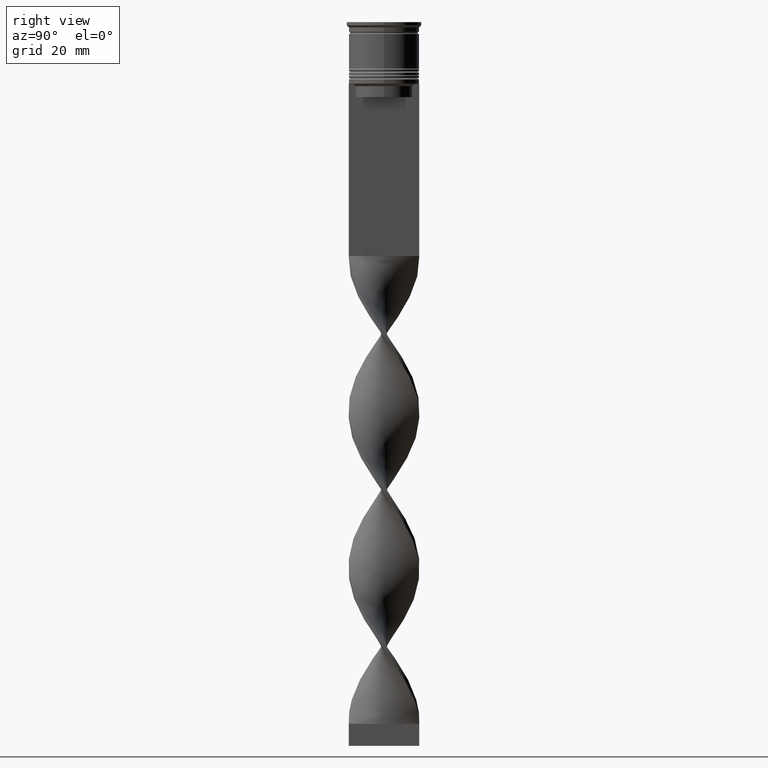
[diagram: clean part render]
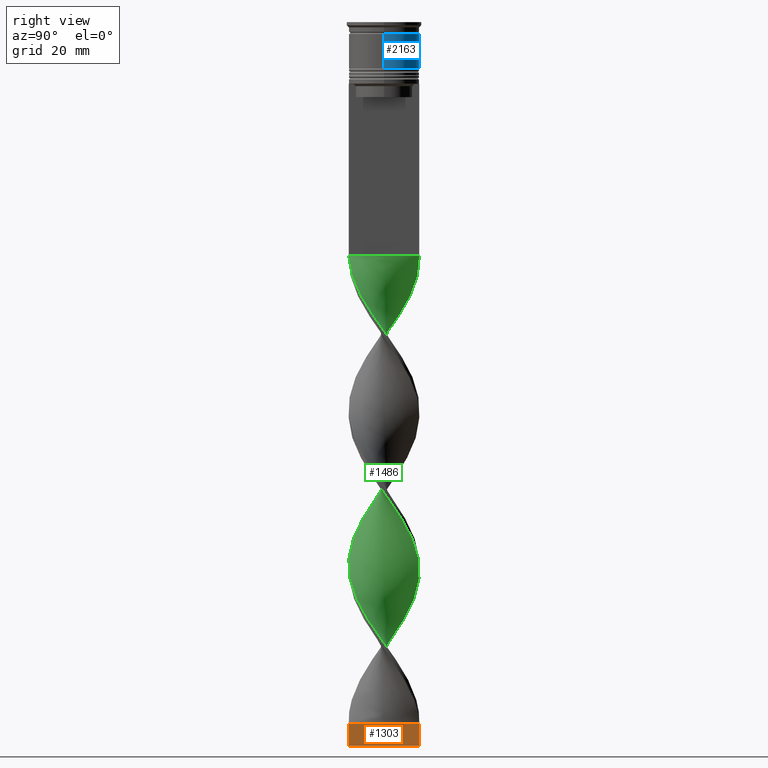
[diagram: same view with three faces highlighted in distinct colors, each labeled with its STEP entity id]
A machine part, right view with three faces highlighted in distinct colors.
Their STEP definitions:

[orange] entity #1303 — the highlighted planar face has unit normal (-1, 0, 0).
#45 = EDGE_CURVE ( 'NONE', #490, #826, #3717, .T. ) ;
#74 = EDGE_LOOP ( 'NONE', ( #1219, #2660, #2033, #2941 ) ) ;
#264 = LINE ( 'NONE', #1386, #3693 ) ;
#357 = VECTOR ( 'NONE', #3415, 1000.000000000000000 ) ;
#490 = VERTEX_POINT ( 'NONE', #2542 ) ;
#709 = DIRECTION ( 'NONE',  ( -1.000000000000000000, 1.219727444046192488E-16, 0.000000000000000000 ) ) ;
#826 = VERTEX_POINT ( 'NONE', #3405 ) ;
#866 = CARTESIAN_POINT ( 'NONE',  ( 0.5000000000000008882, 8.000000000000003553, -164.0000000000000000 ) ) ;
#1056 = CARTESIAN_POINT ( 'NONE',  ( 0.5000000000000008882, 8.000000000000003553, -159.0000000000000000 ) ) ;
#1127 = CARTESIAN_POINT ( 'NONE',  ( 0.5000000000000008882, 8.000000000000003553, -164.0000000000000000 ) ) ;
#1191 = EDGE_CURVE ( 'NONE', #826, #3558, #1397, .T. ) ;
#1219 = ORIENTED_EDGE ( 'NONE', *, *, #1191, .T. ) ;
#1303 = ADVANCED_FACE ( 'NONE', ( #2208 ), #2451, .F. ) ;
#1386 = CARTESIAN_POINT ( 'NONE',  ( 0.4999999999999989453, -7.999999999999996447, -164.0000000000000000 ) ) ;
#1397 = B_SPLINE_CURVE_WITH_KNOTS ( 'NONE', 3,
 ( #1056, #2194, #2765, #2494 ),
 .UNSPECIFIED., .F., .F.,
 ( 4, 4 ),
 ( 0.000000000000000000, 1.000000000000000000 ),
 .UNSPECIFIED. ) ;
#1435 = EDGE_CURVE ( 'NONE', #3306, #3558, #264, .T. ) ;
#1643 = VECTOR ( 'NONE', #1684, 1000.000000000000000 ) ;
#1684 = DIRECTION ( 'NONE',  ( -1.219727444046192488E-16, -1.000000000000000000, 0.000000000000000000 ) ) ;
#1898 = DIRECTION ( 'NONE',  ( -1.219727444046192488E-16, -1.000000000000000000, 0.000000000000000000 ) ) ;
#2033 = ORIENTED_EDGE ( 'NONE', *, *, #2903, .F. ) ;
#2191 = CARTESIAN_POINT ( 'NONE',  ( 0.4999999999999989453, -7.999999999999996447, -164.0000000000000000 ) ) ;
#2194 = CARTESIAN_POINT ( 'NONE',  ( 0.5000000000000002220, 2.666666666666670515, -159.0000000000000000 ) ) ;
#2208 = FACE_OUTER_BOUND ( 'NONE', #74, .T. ) ;
#2451 = PLANE ( 'NONE',  #3633 ) ;
#2494 = CARTESIAN_POINT ( 'NONE',  ( 0.4999999999999989453, -7.999999999999996447, -159.0000000000000000 ) ) ;
#2542 = CARTESIAN_POINT ( 'NONE',  ( 0.5000000000000008882, 8.000000000000003553, -164.0000000000000000 ) ) ;
#2660 = ORIENTED_EDGE ( 'NONE', *, *, #1435, .F. ) ;
#2765 = CARTESIAN_POINT ( 'NONE',  ( 0.4999999999999995559, -2.666666666666663410, -159.0000000000000000 ) ) ;
#2888 = CARTESIAN_POINT ( 'NONE',  ( 0.4999999999999989453, -7.999999999999996447, -159.0000000000000000 ) ) ;
#2903 = EDGE_CURVE ( 'NONE', #490, #3306, #3194, .T. ) ;
#2941 = ORIENTED_EDGE ( 'NONE', *, *, #45, .T. ) ;
#3194 = LINE ( 'NONE', #866, #1643 ) ;
#3306 = VERTEX_POINT ( 'NONE', #2191 ) ;
#3405 = CARTESIAN_POINT ( 'NONE',  ( 0.5000000000000008882, 8.000000000000003553, -159.0000000000000000 ) ) ;
#3415 = DIRECTION ( 'NONE',  ( -0.000000000000000000, -0.000000000000000000, 1.000000000000000000 ) ) ;
#3558 = VERTEX_POINT ( 'NONE', #2888 ) ;
#3633 = AXIS2_PLACEMENT_3D ( 'NONE', #3673, #709, #1898 ) ;
#3673 = CARTESIAN_POINT ( 'NONE',  ( 0.5000000000000008882, 8.000000000000003553, -164.0000000000000000 ) ) ;
#3690 = DIRECTION ( 'NONE',  ( -0.000000000000000000, -0.000000000000000000, 1.000000000000000000 ) ) ;
#3693 = VECTOR ( 'NONE', #3690, 1000.000000000000000 ) ;
#3717 = LINE ( 'NONE', #1127, #357 ) ;

[blue] entity #2163 — the highlighted cylindrical surface (edge-blend (fillet) strip) has radius 8 mm, axis along (-0, -0, 1).
#10 = EDGE_CURVE ( 'NONE', #52, #3606, #1213, .T. ) ;
#17 = DIRECTION ( 'NONE',  ( -0.000000000000000000, -0.000000000000000000, 1.000000000000000000 ) ) ;
#52 = VERTEX_POINT ( 'NONE', #829 ) ;
#60 = CIRCLE ( 'NONE', #2781, 8.000000000000001776 ) ;
#199 = DIRECTION ( 'NONE',  ( 1.000000000000000000, 0.000000000000000000, 0.000000000000000000 ) ) ;
#496 = ORIENTED_EDGE ( 'NONE', *, *, #2614, .T. ) ;
#509 = ORIENTED_EDGE ( 'NONE', *, *, #772, .T. ) ;
#686 = ORIENTED_EDGE ( 'NONE', *, *, #10, .F. ) ;
#711 = LINE ( 'NONE', #2096, #3274 ) ;
#772 = EDGE_CURVE ( 'NONE', #2432, #1036, #60, .T. ) ;
#829 = CARTESIAN_POINT ( 'NONE',  ( 7.999999999999998224, 0.000000000000000000, -2.700000000000001510 ) ) ;
#926 = EDGE_CURVE ( 'NONE', #2432, #52, #1152, .T. ) ;
#1036 = VERTEX_POINT ( 'NONE', #2330 ) ;
#1065 = DIRECTION ( 'NONE',  ( -0.000000000000000000, -0.000000000000000000, 1.000000000000000000 ) ) ;
#1152 = LINE ( 'NONE', #3170, #2174 ) ;
#1213 = CIRCLE ( 'NONE', #2345, 7.999999999999998224 ) ;
#1227 = AXIS2_PLACEMENT_3D ( 'NONE', #3595, #17, #2036 ) ;
#1587 = CYLINDRICAL_SURFACE ( 'NONE', #1227, 8.000000000000000000 ) ;
#1977 = DIRECTION ( 'NONE',  ( 1.000000000000000000, 0.000000000000000000, 0.000000000000000000 ) ) ;
#2036 = DIRECTION ( 'NONE',  ( 1.000000000000000000, 0.000000000000000000, 0.000000000000000000 ) ) ;
#2096 = CARTESIAN_POINT ( 'NONE',  ( -8.000000000000000000, 9.797174393178825657E-16, 0.000000000000000000 ) ) ;
#2138 = DIRECTION ( 'NONE',  ( -0.000000000000000000, -0.000000000000000000, 1.000000000000000000 ) ) ;
#2163 = ADVANCED_FACE ( 'NONE', ( #2606 ), #1587, .T. ) ;
#2174 = VECTOR ( 'NONE', #2597, 1000.000000000000000 ) ;
#2330 = CARTESIAN_POINT ( 'NONE',  ( -8.000000000000001776, 9.797174393178827630E-16, -10.50000000000000000 ) ) ;
#2345 = AXIS2_PLACEMENT_3D ( 'NONE', #2823, #3696, #199 ) ;
#2432 = VERTEX_POINT ( 'NONE', #3359 ) ;
#2597 = DIRECTION ( 'NONE',  ( -0.000000000000000000, -0.000000000000000000, 1.000000000000000000 ) ) ;
#2606 = FACE_OUTER_BOUND ( 'NONE', #2741, .T. ) ;
#2614 = EDGE_CURVE ( 'NONE', #1036, #3606, #711, .T. ) ;
#2674 = CARTESIAN_POINT ( 'NONE',  ( -7.999999999999998224, 9.797174393178823685E-16, -2.700000000000001510 ) ) ;
#2741 = EDGE_LOOP ( 'NONE', ( #509, #496, #686, #3300 ) ) ;
#2781 = AXIS2_PLACEMENT_3D ( 'NONE', #2798, #1065, #1977 ) ;
#2798 = CARTESIAN_POINT ( 'NONE',  ( 0.000000000000000000, 0.000000000000000000, -10.50000000000000000 ) ) ;
#2823 = CARTESIAN_POINT ( 'NONE',  ( 0.000000000000000000, 0.000000000000000000, -2.700000000000001510 ) ) ;
#3170 = CARTESIAN_POINT ( 'NONE',  ( 8.000000000000000000, 0.000000000000000000, 0.000000000000000000 ) ) ;
#3274 = VECTOR ( 'NONE', #2138, 1000.000000000000000 ) ;
#3300 = ORIENTED_EDGE ( 'NONE', *, *, #926, .F. ) ;
#3359 = CARTESIAN_POINT ( 'NONE',  ( 8.000000000000001776, 0.000000000000000000, -10.50000000000000000 ) ) ;
#3595 = CARTESIAN_POINT ( 'NONE',  ( 0.000000000000000000, 0.000000000000000000, 0.000000000000000000 ) ) ;
#3606 = VERTEX_POINT ( 'NONE', #2674 ) ;
#3696 = DIRECTION ( 'NONE',  ( -0.000000000000000000, -0.000000000000000000, 1.000000000000000000 ) ) ;

[green] entity #1486 — the highlighted face is a freeform B-spline surface patch.
#4 = CARTESIAN_POINT ( 'NONE',  ( -3.586635261345274994, -7.217742780431604110, -117.7777777777777857 ) ) ;
#23 = CARTESIAN_POINT ( 'NONE',  ( 1.340833882125412213, -7.947447882367163707, -124.8444444444444343 ) ) ;
#32 = CARTESIAN_POINT ( 'NONE',  ( -2.007605570224930691, 7.805721184925808132, -127.2000000000000171 ) ) ;
#34 = CARTESIAN_POINT ( 'NONE',  ( -3.710665873427702710, -7.104995339602902860, -154.2888888888888914 ) ) ;
#50 = CARTESIAN_POINT ( 'NONE',  ( -7.903910931312356780, 1.333488653825365855, -69.48888888888889426 ) ) ;
#51 = CARTESIAN_POINT ( 'NONE',  ( 1.174219726175168788, -7.929136651279321768, -90.68888888888888289 ) ) ;
#58 = CARTESIAN_POINT ( 'NONE',  ( 4.297773521152314480, 6.766028581145818066, -151.9333333333333371 ) ) ;
#71 = CARTESIAN_POINT ( 'NONE',  ( -5.008911780959349080, 6.314314381860025804, -61.24444444444443292 ) ) ;
#73 = CARTESIAN_POINT ( 'NONE',  ( 6.279723906998583516, 4.981472438132163560, -114.2444444444444542 ) ) ;
#83 = CARTESIAN_POINT ( 'NONE',  ( -0.4999999999999991673, 8.000000000000003553, -159.0000000000000000 ) ) ;
#90 = CARTESIAN_POINT ( 'NONE',  ( 2.152367326908981138, 7.721224960461560372, -121.3111111111111171 ) ) ;
#96 = CARTESIAN_POINT ( 'NONE',  ( 6.279723906998584404, -4.981472438132170666, -133.0888888888889028 ) ) ;
#97 = VERTEX_POINT ( 'NONE', #3219 ) ;
#108 = CARTESIAN_POINT ( 'NONE',  ( -3.710665873427702710, -7.104995339602902860, -154.2888888888888914 ) ) ;
#126 = CARTESIAN_POINT ( 'NONE',  ( -4.297773521152309151, 6.766028581145814513, -60.06666666666666288 ) ) ;
#129 = CARTESIAN_POINT ( 'NONE',  ( -7.903910931312363886, -1.333488653825361192, -107.1777777777777771 ) ) ;
#130 = B_SPLINE_CURVE_WITH_KNOTS ( 'NONE', 3,
 ( #2961, #1528, #2670, #83 ),
 .UNSPECIFIED., .F., .F.,
 ( 4, 4 ),
 ( 0.000000000000000000, 1.000000000000000000 ),
 .UNSPECIFIED. ) ;
#148 = CARTESIAN_POINT ( 'NONE',  ( 6.678203230275505220, -4.433012701892221408, -100.1111111111111143 ) ) ;
#151 = CARTESIAN_POINT ( 'NONE',  ( 3.586635261345274106, 7.217742780431604999, -82.44444444444444287 ) ) ;
#170 = CARTESIAN_POINT ( 'NONE',  ( -1.340833882125413545, -7.947447882367156602, -157.8222222222221660 ) ) ;
#180 = CARTESIAN_POINT ( 'NONE',  ( 1.340833882125412213, -7.947447882367163707, -54.17777777777777715 ) ) ;
#190 = CARTESIAN_POINT ( 'NONE',  ( 7.763755626116592090, 2.164223167868970066, -73.02222222222219727 ) ) ;
#208 = CARTESIAN_POINT ( 'NONE',  ( 5.756150055891659179, -5.641498017056845171, -131.9111111111111256 ) ) ;
#223 = CARTESIAN_POINT ( 'NONE',  ( 2.797120415785104619, 7.511731982678710118, -154.2888888888888914 ) ) ;
#238 = VECTOR ( 'NONE', #3014, 1000.000000000000000 ) ;
#254 = CARTESIAN_POINT ( 'NONE',  ( -8.008439394580017634, 0.3389667584570975056, -104.8222222222222229 ) ) ;
#260 = CARTESIAN_POINT ( 'NONE',  ( 3.710665873427703154, -7.104995339602909965, -128.3777777777777942 ) ) ;
#266 = CARTESIAN_POINT ( 'NONE',  ( -6.678203230275506108, 4.433012701892218743, -135.4444444444444571 ) ) ;
#272 = CARTESIAN_POINT ( 'NONE',  ( 4.457430975162862907, -6.714988640649847795, -129.5555555555555429 ) ) ;
#281 = EDGE_CURVE ( 'NONE', #2786, #1412, #2745, .T. ) ;
#284 = CARTESIAN_POINT ( 'NONE',  ( -2.007605570224930691, 7.805721184925808132, -127.2000000000000028 ) ) ;
#287 = CARTESIAN_POINT ( 'NONE',  ( -7.144131640230925839, -3.731105258425339688, -110.7111111111111086 ) ) ;
#299 = CARTESIAN_POINT ( 'NONE',  ( -7.453943633173751415, 2.947664213147155543, -67.13333333333333997 ) ) ;
#301 = CARTESIAN_POINT ( 'NONE',  ( 0.5000000000000001110, 7.999999999999996447, -123.6666666666666714 ) ) ;
#308 = CARTESIAN_POINT ( 'NONE',  ( -7.972812552651897811, 1.180687656695944776, -103.6444444444444457 ) ) ;
#320 = CARTESIAN_POINT ( 'NONE',  ( -0.3408338821254111584, 8.052552117632835404, -124.8444444444444343 ) ) ;
#322 = CARTESIAN_POINT ( 'NONE',  ( 7.762960627548699755, 1.996607696851999680, -109.5333333333333456 ) ) ;
#327 = CARTESIAN_POINT ( 'NONE',  ( -0.4999999999999991673, 8.000000000000003553, -88.33333333333332860 ) ) ;
#337 = CARTESIAN_POINT ( 'NONE',  ( 1.340833882125418208, 7.947447882367156602, -122.4888888888888800 ) ) ;
#351 = CARTESIAN_POINT ( 'NONE',  ( -1.174219726175170786, 7.929136651279321768, -55.35555555555555429 ) ) ;
#353 = CARTESIAN_POINT ( 'NONE',  ( 6.678203230275505220, -4.433012701892221408, -100.1111111111111143 ) ) ;
#360 = CARTESIAN_POINT ( 'NONE',  ( 7.903910931312363886, 1.333488653825363857, -142.5111111111111200 ) ) ;
#372 = CARTESIAN_POINT ( 'NONE',  ( -1.340833882125413545, -7.947447882367156602, -87.15555555555553724 ) ) ;
#374 = CARTESIAN_POINT ( 'NONE',  ( 7.144131640230915181, -3.731105258425345461, -101.2888888888888914 ) ) ;
#380 = CARTESIAN_POINT ( 'NONE',  ( 7.553108702445512357, -2.812527737008067241, -136.6222222222222342 ) ) ;
#393 = CARTESIAN_POINT ( 'NONE',  ( 6.803297758105507853, 4.321446859207492608, -113.0666666666666487 ) ) ;
#400 = CARTESIAN_POINT ( 'NONE',  ( 3.586635261345274106, 7.217742780431604999, -153.1111111111111143 ) ) ;
#411 = CARTESIAN_POINT ( 'NONE',  ( -7.972812552651896922, 1.180687656695944776, -103.6444444444444457 ) ) ;
#418 = CARTESIAN_POINT ( 'NONE',  ( 8.008439394580017634, -0.3389667584570930092, -140.1555555555555657 ) ) ;
#429 = CARTESIAN_POINT ( 'NONE',  ( -7.763755626116584985, 2.164223167868970954, -68.31111111111111711 ) ) ;
#433 = CARTESIAN_POINT ( 'NONE',  ( -0.5000000000000011102, -7.999999999999996447, -159.0000000000000000 ) ) ;
#451 = CARTESIAN_POINT ( 'NONE',  ( 6.212274820320095259, -5.134920145359096466, -98.93333333333332291 ) ) ;
#453 = CARTESIAN_POINT ( 'NONE',  ( 7.553108702445513245, -2.812527737008067685, -65.95555555555556282 ) ) ;
#471 = CARTESIAN_POINT ( 'NONE',  ( 4.297773521152314480, 6.766028581145818066, -81.26666666666666572 ) ) ;
#489 = CARTESIAN_POINT ( 'NONE',  ( 5.008911780959355298, 6.314314381860029357, -80.08888888888890278 ) ) ;
#508 = CARTESIAN_POINT ( 'NONE',  ( 7.553108702445513245, -2.812527737008067685, -136.6222222222222342 ) ) ;
#512 = CARTESIAN_POINT ( 'NONE',  ( 0.5000000000000001110, 7.999999999999996447, -53.00000000000000000 ) ) ;
#537 = CARTESIAN_POINT ( 'NONE',  ( -4.457430975162861131, 6.714988640649849572, -94.22222222222221433 ) ) ;
#551 = CARTESIAN_POINT ( 'NONE',  ( -7.453943633173751415, 2.947664213147155543, -137.8000000000000114 ) ) ;
#558 = CARTESIAN_POINT ( 'NONE',  ( -7.903910931312363886, -1.333488653825361192, -107.1777777777777771 ) ) ;
#566 = CARTESIAN_POINT ( 'NONE',  ( 6.212274820320101476, 5.134920145359098242, -148.4000000000000057 ) ) ;
#578 = CARTESIAN_POINT ( 'NONE',  ( 2.963900771692544289, -7.495002038555971247, -56.53333333333332433 ) ) ;
#579 = EDGE_CURVE ( 'NONE', #1412, #97, #2761, .T. ) ;
#583 = CARTESIAN_POINT ( 'NONE',  ( 7.762960627548705084, -1.996607696852003677, -137.8000000000000114 ) ) ;
#589 = CARTESIAN_POINT ( 'NONE',  ( -3.586635261345268333, 7.217742780431601446, -129.5555555555555429 ) ) ;
#594 = CARTESIAN_POINT ( 'NONE',  ( -7.178203230275511437, 3.566987298107786142, -100.1111111111111143 ) ) ;
#606 = CARTESIAN_POINT ( 'NONE',  ( 2.963900771692544289, 7.495002038555964141, -120.1333333333333400 ) ) ;
#608 = CARTESIAN_POINT ( 'NONE',  ( 1.340833882125418208, 7.947447882367156602, -122.4888888888888800 ) ) ;
#616 = CARTESIAN_POINT ( 'NONE',  ( 5.756150055891658290, -5.641498017056844283, -61.24444444444443292 ) ) ;
#628 = CARTESIAN_POINT ( 'NONE',  ( 4.457430975162862907, 6.714988640649839802, -117.7777777777777999 ) ) ;
#631 = CARTESIAN_POINT ( 'NONE',  ( -6.212274820320096147, 5.134920145359095578, -134.2666666666666515 ) ) ;
#636 = CARTESIAN_POINT ( 'NONE',  ( 7.972812552651897811, -1.180687656695942112, -138.9777777777777885 ) ) ;
#647 = CARTESIAN_POINT ( 'NONE',  ( -7.972812552651889817, -1.180687656695938337, -73.02222222222219727 ) ) ;
#659 = CARTESIAN_POINT ( 'NONE',  ( -5.756150055891655626, -5.641498017056837178, -80.08888888888888857 ) ) ;
#661 = CARTESIAN_POINT ( 'NONE',  ( -8.008439394580010529, -0.3389667584570894565, -142.5111111111111200 ) ) ;
#682 = CARTESIAN_POINT ( 'NONE',  ( -7.453943633173751415, 2.947664213147155543, -67.13333333333333997 ) ) ;
#685 = CARTESIAN_POINT ( 'NONE',  ( -8.044066236508127687, 0.5027541397817588686, -70.66666666666667140 ) ) ;
#705 = CARTESIAN_POINT ( 'NONE',  ( 7.178203230275512325, -3.566987298107783477, -64.77777777777778567 ) ) ;
#719 = CARTESIAN_POINT ( 'NONE',  ( -3.710665873427702710, -7.104995339602902860, -83.62222222222222001 ) ) ;
#722 = CARTESIAN_POINT ( 'NONE',  ( 5.610593300639729719, 5.724617263609562912, -78.91111111111111143 ) ) ;
#742 = CARTESIAN_POINT ( 'NONE',  ( 3.586635261345266557, -7.217742780431602334, -94.22222222222221433 ) ) ;
#746 = CARTESIAN_POINT ( 'NONE',  ( -2.963900771692543401, -7.495002038555964141, -155.4666666666666686 ) ) ;
#764 = CARTESIAN_POINT ( 'NONE',  ( 2.963900771692544289, -7.495002038555971247, -56.53333333333331723 ) ) ;
#780 = CARTESIAN_POINT ( 'NONE',  ( -7.762960627548705084, 1.996607696852004565, -102.4666666666666686 ) ) ;
#799 = CARTESIAN_POINT ( 'NONE',  ( -5.008911780959359739, -6.314314381860026693, -115.4222222222222456 ) ) ;
#808 = CARTESIAN_POINT ( 'NONE',  ( 0.5000000000000001110, -8.000000000000003553, -53.00000000000000000 ) ) ;
#821 = CARTESIAN_POINT ( 'NONE',  ( 1.340833882125412213, -7.947447882367162819, -124.8444444444444343 ) ) ;
#833 = CARTESIAN_POINT ( 'NONE',  ( 7.144131640230924951, 3.731105258425341464, -75.37777777777777999 ) ) ;
#838 = CARTESIAN_POINT ( 'NONE',  ( 7.763755626116592090, 2.164223167868970066, -143.6888888888888971 ) ) ;
#843 = CARTESIAN_POINT ( 'NONE',  ( -7.903910931312356780, 1.333488653825365855, -69.48888888888889426 ) ) ;
#845 = CARTESIAN_POINT ( 'NONE',  ( -8.044066236508127687, 0.5027541397817588686, -141.3333333333333428 ) ) ;
#849 = CARTESIAN_POINT ( 'NONE',  ( -6.803297758105512294, 4.321446859207499713, -98.93333333333332291 ) ) ;
#862 = CARTESIAN_POINT ( 'NONE',  ( -5.610593300639721726, 5.724617263609561135, -62.42222222222221717 ) ) ;
#873 = CARTESIAN_POINT ( 'NONE',  ( -2.963900771692543845, 7.495002038555972135, -91.86666666666666003 ) ) ;
#882 = CARTESIAN_POINT ( 'NONE',  ( -6.212274820320096147, 5.134920145359095578, -63.60000000000000853 ) ) ;
#889 = CARTESIAN_POINT ( 'NONE',  ( 7.453943633173759409, 2.947664213147156431, -74.20000000000000284 ) ) ;
#897 = CARTESIAN_POINT ( 'NONE',  ( 4.297773521152308263, -6.766028581145814513, -95.40000000000000568 ) ) ;
#899 = CARTESIAN_POINT ( 'NONE',  ( 7.763755626116584985, -2.164223167868973619, -103.6444444444444457 ) ) ;
#905 = CARTESIAN_POINT ( 'NONE',  ( -0.3408338821254187634, -8.052552117632842510, -122.4888888888888800 ) ) ;
#915 = CARTESIAN_POINT ( 'NONE',  ( -7.144131640230917846, 3.731105258425341020, -136.6222222222222342 ) ) ;
#917 = CARTESIAN_POINT ( 'NONE',  ( -6.803297758105507853, -4.321446859207493496, -148.4000000000000057 ) ) ;
#924 = CARTESIAN_POINT ( 'NONE',  ( 7.178203230275512325, -3.566987298107783477, -135.4444444444444571 ) ) ;
#937 = CARTESIAN_POINT ( 'NONE',  ( -0.5000000000000011102, -7.999999999999996447, -88.33333333333332860 ) ) ;
#938 = CARTESIAN_POINT ( 'NONE',  ( 7.903910931312356780, -1.333488653825370518, -104.8222222222222229 ) ) ;
#952 = CARTESIAN_POINT ( 'NONE',  ( 7.762960627548699755, 1.996607696851999680, -109.5333333333333456 ) ) ;
#971 = CARTESIAN_POINT ( 'NONE',  ( 5.008911780959347304, -6.314314381860026693, -96.57777777777775441 ) ) ;
#978 = CARTESIAN_POINT ( 'NONE',  ( 5.106790515527261043, -6.178243328853345595, -130.7333333333333485 ) ) ;
#994 = CARTESIAN_POINT ( 'NONE',  ( 6.212274820320101476, 5.134920145359098242, -77.73333333333333428 ) ) ;
#1011 = CARTESIAN_POINT ( 'NONE',  ( -2.152367326908979805, -7.721224960461560372, -156.6444444444444457 ) ) ;
#1027 = CARTESIAN_POINT ( 'NONE',  ( 0.3408338821254078277, -8.052552117632837181, -89.51111111111110574 ) ) ;
#1030 = CARTESIAN_POINT ( 'NONE',  ( 1.174219726175175671, 7.929136651279327097, -85.97777777777777430 ) ) ;
#1049 = CARTESIAN_POINT ( 'NONE',  ( 2.797120415785104619, 7.511731982678710118, -83.62222222222222001 ) ) ;
#1052 = ORIENTED_EDGE ( 'NONE', *, *, #2520, .T. ) ;
#1066 = CARTESIAN_POINT ( 'NONE',  ( -7.553108702445510581, 2.812527737008071682, -101.2888888888888914 ) ) ;
#1082 = CARTESIAN_POINT ( 'NONE',  ( 7.903910931312363886, 1.333488653825363857, -142.5111111111111200 ) ) ;
#1114 = CARTESIAN_POINT ( 'NONE',  ( -7.762960627548705084, 1.996607696852004565, -102.4666666666666686 ) ) ;
#1123 = CARTESIAN_POINT ( 'NONE',  ( -3.586635261345267889, 7.217742780431601446, -58.88888888888889284 ) ) ;
#1125 = CARTESIAN_POINT ( 'NONE',  ( 8.008439394580010529, 0.3389667584570867365, -107.1777777777777771 ) ) ;
#1130 = CARTESIAN_POINT ( 'NONE',  ( 2.152367326908978473, -7.721224960461570141, -126.0222222222222257 ) ) ;
#1135 = CARTESIAN_POINT ( 'NONE',  ( -3.586635261345274994, -7.217742780431604110, -117.7777777777777999 ) ) ;
#1143 = CARTESIAN_POINT ( 'NONE',  ( -7.762960627548699755, -1.996607696852000569, -144.8666666666666742 ) ) ;
#1147 = CARTESIAN_POINT ( 'NONE',  ( 5.008911780959356186, 6.314314381860030245, -80.08888888888888857 ) ) ;
#1163 = CARTESIAN_POINT ( 'NONE',  ( -4.457430975162862019, -6.714988640649840690, -153.1111111111111143 ) ) ;
#1170 = CARTESIAN_POINT ( 'NONE',  ( 2.152367326908978473, -7.721224960461570141, -55.35555555555555429 ) ) ;
#1181 = CARTESIAN_POINT ( 'NONE',  ( -3.710665873427702710, -7.104995339602902860, -83.62222222222222001 ) ) ;
#1183 = CARTESIAN_POINT ( 'NONE',  ( -5.008911780959349080, 6.314314381860025804, -131.9111111111111256 ) ) ;
#1189 = CARTESIAN_POINT ( 'NONE',  ( 5.106790515527261043, -6.178243328853345595, -60.06666666666666288 ) ) ;
#1198 = CARTESIAN_POINT ( 'NONE',  ( -5.610593300639721726, 5.724617263609561135, -133.0888888888889028 ) ) ;
#1201 = CARTESIAN_POINT ( 'NONE',  ( -2.152367326908979805, -7.721224960461560372, -156.6444444444444457 ) ) ;
#1206 = CARTESIAN_POINT ( 'NONE',  ( 7.453943633173759409, 2.947664213147156431, -144.8666666666666742 ) ) ;
#1216 = CARTESIAN_POINT ( 'NONE',  ( -7.762960627548699755, -1.996607696852000569, -74.20000000000000284 ) ) ;
#1218 = CARTESIAN_POINT ( 'NONE',  ( 2.797120415785096625, -7.511731982678705677, -93.04444444444443718 ) ) ;
#1225 = CARTESIAN_POINT ( 'NONE',  ( 5.008911780959356186, 6.314314381860030245, -150.7555555555555600 ) ) ;
#1236 = CARTESIAN_POINT ( 'NONE',  ( -8.044066236508127687, 0.5027541397817588686, -70.66666666666667140 ) ) ;
#1237 = CARTESIAN_POINT ( 'NONE',  ( 5.106790515527259267, 6.178243328853339378, -116.6000000000000085 ) ) ;
#1252 = CARTESIAN_POINT ( 'NONE',  ( 7.453943633173751415, -2.947664213147155987, -102.4666666666666686 ) ) ;
#1258 = CARTESIAN_POINT ( 'NONE',  ( 8.044066236508134793, 0.5027541397817577584, -141.3333333333333428 ) ) ;
#1271 = CARTESIAN_POINT ( 'NONE',  ( -8.008439394580017634, 0.3389667584570975056, -104.8222222222222229 ) ) ;
#1291 = CARTESIAN_POINT ( 'NONE',  ( -6.678203230275506108, 4.433012701892218743, -64.77777777777778567 ) ) ;
#1294 = CARTESIAN_POINT ( 'NONE',  ( -7.763755626116593866, -2.164223167868965625, -108.3555555555555543 ) ) ;
#1309 = CARTESIAN_POINT ( 'NONE',  ( 7.144131640230915181, -3.731105258425345461, -101.2888888888888914 ) ) ;
#1312 = CARTESIAN_POINT ( 'NONE',  ( 7.903910931312363886, 1.333488653825363857, -71.84444444444444855 ) ) ;
#1329 = CARTESIAN_POINT ( 'NONE',  ( 7.972812552651896922, -1.180687656695942334, -68.31111111111111711 ) ) ;
#1351 = CARTESIAN_POINT ( 'NONE',  ( 7.762960627548705084, -1.996607696852003677, -67.13333333333333997 ) ) ;
#1367 = CARTESIAN_POINT ( 'NONE',  ( -1.174219726175176559, -7.929136651279327097, -121.3111111111111171 ) ) ;
#1382 = CARTESIAN_POINT ( 'NONE',  ( 0.3408338821254142115, 8.052552117632842510, -157.8222222222221660 ) ) ;
#1408 = CARTESIAN_POINT ( 'NONE',  ( -0.3408338821254111584, 8.052552117632835404, -54.17777777777777715 ) ) ;
#1412 = VERTEX_POINT ( 'NONE', #512 ) ;
#1416 = CARTESIAN_POINT ( 'NONE',  ( 5.610593300639729719, 5.724617263609562912, -78.91111111111111143 ) ) ;
#1421 = CARTESIAN_POINT ( 'NONE',  ( 5.106790515527261043, -6.178243328853345595, -130.7333333333333485 ) ) ;
#1427 = CARTESIAN_POINT ( 'NONE',  ( 4.457430975162862907, 6.714988640649839802, -117.7777777777777857 ) ) ;
#1432 = CARTESIAN_POINT ( 'NONE',  ( 8.008439394580017634, -0.3389667584570930092, -69.48888888888889426 ) ) ;
#1437 = CARTESIAN_POINT ( 'NONE',  ( 6.279723906998584404, -4.981472438132170666, -133.0888888888889028 ) ) ;
#1443 = CARTESIAN_POINT ( 'NONE',  ( 7.972812552651892481, 1.180687656695933230, -108.3555555555555543 ) ) ;
#1449 = CARTESIAN_POINT ( 'NONE',  ( -5.008911780959359739, -6.314314381860026693, -115.4222222222222314 ) ) ;
#1466 = CARTESIAN_POINT ( 'NONE',  ( -7.144131640230917846, 3.731105258425341020, -136.6222222222222342 ) ) ;
#1473 = CARTESIAN_POINT ( 'NONE',  ( 7.972812552651897811, -1.180687656695942112, -68.31111111111111711 ) ) ;
#1482 = CARTESIAN_POINT ( 'NONE',  ( -4.297773521152309151, 6.766028581145814513, -130.7333333333333485 ) ) ;
#1484 = CARTESIAN_POINT ( 'NONE',  ( 5.106790515527259267, 6.178243328853339378, -116.6000000000000085 ) ) ;
#1486 = ADVANCED_FACE ( 'NONE', ( #1968 ), #2648, .T. ) ;
#1489 = CARTESIAN_POINT ( 'NONE',  ( 7.762960627548705084, -1.996607696852003677, -67.13333333333333997 ) ) ;
#1498 = CARTESIAN_POINT ( 'NONE',  ( -6.279723906998582628, -4.981472438132164449, -78.91111111111111143 ) ) ;
#1506 = CARTESIAN_POINT ( 'NONE',  ( 2.007605570224934244, 7.805721184925815237, -155.4666666666666686 ) ) ;
#1514 = CARTESIAN_POINT ( 'NONE',  ( -3.586635261345268333, 7.217742780431601446, -58.88888888888888573 ) ) ;
#1516 = CARTESIAN_POINT ( 'NONE',  ( 6.212274820320095259, -5.134920145359096466, -98.93333333333332291 ) ) ;
#1524 = CARTESIAN_POINT ( 'NONE',  ( -0.4999999999999991673, 8.000000000000003553, -159.0000000000000000 ) ) ;
#1528 = CARTESIAN_POINT ( 'NONE',  ( -0.5000000000000004441, -2.666666666666663410, -159.0000000000000000 ) ) ;
#1536 = CARTESIAN_POINT ( 'NONE',  ( -6.803297758105507853, -4.321446859207493496, -77.73333333333333428 ) ) ;
#1552 = CARTESIAN_POINT ( 'NONE',  ( -7.178203230275506996, -3.566987298107776816, -76.55555555555555713 ) ) ;
#1571 = CARTESIAN_POINT ( 'NONE',  ( -6.279723906998584404, 4.981472438132172442, -97.75555555555555998 ) ) ;
#1594 = CARTESIAN_POINT ( 'NONE',  ( 4.457430975162862907, -6.714988640649848683, -58.88888888888889284 ) ) ;
#1610 = CARTESIAN_POINT ( 'NONE',  ( 2.152367326908978473, -7.721224960461570141, -55.35555555555555429 ) ) ;
#1625 = CARTESIAN_POINT ( 'NONE',  ( -4.457430975162861131, 6.714988640649850460, -94.22222222222221433 ) ) ;
#1646 = CARTESIAN_POINT ( 'NONE',  ( 7.144131640230924951, 3.731105258425341464, -75.37777777777777999 ) ) ;
#1661 = CARTESIAN_POINT ( 'NONE',  ( 6.803297758105512294, -4.321446859207498825, -134.2666666666666231 ) ) ;
#1669 = ORIENTED_EDGE ( 'NONE', *, *, #2294, .F. ) ;
#1678 = CARTESIAN_POINT ( 'NONE',  ( 2.007605570224934244, 7.805721184925815237, -155.4666666666666686 ) ) ;
#1689 = CARTESIAN_POINT ( 'NONE',  ( -5.106790515527260155, 6.178243328853345595, -95.40000000000000568 ) ) ;
#1705 = CARTESIAN_POINT ( 'NONE',  ( 7.178203230275508773, 3.566987298107773263, -111.8888888888888999 ) ) ;
#1711 = CARTESIAN_POINT ( 'NONE',  ( -5.610593300639730607, -5.724617263609562023, -114.2444444444444542 ) ) ;
#1719 = CARTESIAN_POINT ( 'NONE',  ( -6.678203230275506108, 4.433012701892218743, -64.77777777777778567 ) ) ;
#1721 = CARTESIAN_POINT ( 'NONE',  ( -7.178203230275506996, -3.566987298107776816, -147.2222222222222285 ) ) ;
#1725 = CARTESIAN_POINT ( 'NONE',  ( 6.803297758105513182, -4.321446859207498825, -63.60000000000000142 ) ) ;
#1737 = CARTESIAN_POINT ( 'NONE',  ( -5.610593300639721726, 5.724617263609561135, -133.0888888888889028 ) ) ;
#1743 = CARTESIAN_POINT ( 'NONE',  ( 4.297773521152314480, 6.766028581145818066, -81.26666666666666572 ) ) ;
#1757 = CARTESIAN_POINT ( 'NONE',  ( 7.763755626116584097, -2.164223167868973619, -103.6444444444444457 ) ) ;
#1760 = CARTESIAN_POINT ( 'NONE',  ( -8.008439394580010529, -0.3389667584570894565, -142.5111111111111200 ) ) ;
#1765 = CARTESIAN_POINT ( 'NONE',  ( 0.3408338821254142115, 8.052552117632842510, -87.15555555555553724 ) ) ;
#1775 = CARTESIAN_POINT ( 'NONE',  ( -7.453943633173751415, 2.947664213147155543, -137.8000000000000114 ) ) ;
#1792 = CARTESIAN_POINT ( 'NONE',  ( -2.963900771692543401, -7.495002038555964141, -84.79999999999998295 ) ) ;
#1799 = CARTESIAN_POINT ( 'NONE',  ( 7.762960627548705084, -1.996607696852003677, -137.8000000000000114 ) ) ;
#1808 = CARTESIAN_POINT ( 'NONE',  ( -5.106790515527258378, -6.178243328853339378, -81.26666666666666572 ) ) ;
#1811 = CARTESIAN_POINT ( 'NONE',  ( -7.972812552651889817, -1.180687656695938337, -143.6888888888888971 ) ) ;
#1834 = CARTESIAN_POINT ( 'NONE',  ( -2.797120415785099734, 7.511731982678703901, -128.3777777777777942 ) ) ;
#1841 = CARTESIAN_POINT ( 'NONE',  ( 1.174219726175175671, 7.929136651279327097, -156.6444444444444457 ) ) ;
#1855 = CARTESIAN_POINT ( 'NONE',  ( -0.4999999999999991673, 8.000000000000003553, -88.33333333333332860 ) ) ;
#1869 = CARTESIAN_POINT ( 'NONE',  ( -2.152367326908979805, -7.721224960461560372, -85.97777777777777430 ) ) ;
#1873 = CARTESIAN_POINT ( 'NONE',  ( -6.212274820320102364, -5.134920145359098242, -113.0666666666666487 ) ) ;
#1882 = ORIENTED_EDGE ( 'NONE', *, *, #579, .F. ) ;
#1883 = EDGE_LOOP ( 'NONE', ( #3336, #1052, #1669, #1882 ) ) ;
#1891 = CARTESIAN_POINT ( 'NONE',  ( 4.297773521152308263, -6.766028581145814513, -95.40000000000000568 ) ) ;
#1894 = CARTESIAN_POINT ( 'NONE',  ( 0.5000000000000001110, -8.000000000000003553, -53.00000000000000000 ) ) ;
#1908 = CARTESIAN_POINT ( 'NONE',  ( 6.803297758105512294, -4.321446859207498825, -63.60000000000000853 ) ) ;
#1925 = CARTESIAN_POINT ( 'NONE',  ( 8.044066236508134793, 0.5027541397817577584, -70.66666666666667140 ) ) ;
#1944 = CARTESIAN_POINT ( 'NONE',  ( -2.797120415785108172, -7.511731982678708341, -118.9555555555555628 ) ) ;
#1968 = FACE_OUTER_BOUND ( 'NONE', #1883, .T. ) ;
#1974 = CARTESIAN_POINT ( 'NONE',  ( -1.340833882125409104, 7.947447882367165484, -89.51111111111110574 ) ) ;
#1984 = CARTESIAN_POINT ( 'NONE',  ( 7.903910931312356780, -1.333488653825370518, -104.8222222222222229 ) ) ;
#1989 = CARTESIAN_POINT ( 'NONE',  ( -5.756150055891657402, 5.641498017056845171, -96.57777777777776862 ) ) ;
#2011 = CARTESIAN_POINT ( 'NONE',  ( -4.297773521152315368, -6.766028581145818066, -116.6000000000000085 ) ) ;
#2015 = CARTESIAN_POINT ( 'NONE',  ( -4.297773521152315368, -6.766028581145818066, -116.6000000000000085 ) ) ;
#2022 = CARTESIAN_POINT ( 'NONE',  ( -1.340833882125413545, -7.947447882367156602, -157.8222222222221944 ) ) ;
#2027 = CARTESIAN_POINT ( 'NONE',  ( 8.044066236508134793, 0.5027541397817577584, -70.66666666666667140 ) ) ;
#2035 = CARTESIAN_POINT ( 'NONE',  ( 7.553108702445507916, 2.812527737008058804, -110.7111111111110944 ) ) ;
#2037 = CARTESIAN_POINT ( 'NONE',  ( -7.763755626116584985, 2.164223167868970954, -138.9777777777777885 ) ) ;
#2042 = CARTESIAN_POINT ( 'NONE',  ( -7.763755626116593866, -2.164223167868965625, -108.3555555555555543 ) ) ;
#2054 = CARTESIAN_POINT ( 'NONE',  ( -5.106790515527258378, -6.178243328853339378, -81.26666666666666572 ) ) ;
#2056 = CARTESIAN_POINT ( 'NONE',  ( -0.5000000000000011102, -7.999999999999996447, -159.0000000000000000 ) ) ;
#2074 = CARTESIAN_POINT ( 'NONE',  ( 3.586635261345266112, -7.217742780431602334, -94.22222222222221433 ) ) ;
#2088 = CARTESIAN_POINT ( 'NONE',  ( -7.972812552651890705, -1.180687656695938115, -73.02222222222221149 ) ) ;
#2089 = CARTESIAN_POINT ( 'NONE',  ( 5.756150055891659179, 5.641498017056833625, -115.4222222222222456 ) ) ;
#2108 = CARTESIAN_POINT ( 'NONE',  ( -4.457430975162862019, -6.714988640649840690, -82.44444444444444287 ) ) ;
#2132 = CARTESIAN_POINT ( 'NONE',  ( -6.803297758105507853, -4.321446859207493496, -148.4000000000000057 ) ) ;
#2147 = CARTESIAN_POINT ( 'NONE',  ( -6.212274820320096147, 5.134920145359095578, -63.60000000000000142 ) ) ;
#2149 = CARTESIAN_POINT ( 'NONE',  ( -5.106790515527258378, -6.178243328853339378, -151.9333333333333371 ) ) ;
#2164 = CARTESIAN_POINT ( 'NONE',  ( 2.007605570224929803, -7.805721184925809020, -91.86666666666666003 ) ) ;
#2166 = CARTESIAN_POINT ( 'NONE',  ( 5.756150055891659179, -5.641498017056845171, -61.24444444444443292 ) ) ;
#2189 = CARTESIAN_POINT ( 'NONE',  ( -1.340833882125409104, 7.947447882367164596, -89.51111111111111995 ) ) ;
#2204 = CARTESIAN_POINT ( 'NONE',  ( 5.106790515527261043, -6.178243328853345595, -60.06666666666666288 ) ) ;
#2219 = CARTESIAN_POINT ( 'NONE',  ( 2.152367326908978473, -7.721224960461570141, -126.0222222222222257 ) ) ;
#2254 = CARTESIAN_POINT ( 'NONE',  ( -7.453943633173759409, -2.947664213147155543, -109.5333333333333456 ) ) ;
#2263 = CARTESIAN_POINT ( 'NONE',  ( -5.008911780959349080, 6.314314381860025804, -61.24444444444443292 ) ) ;
#2266 = CARTESIAN_POINT ( 'NONE',  ( 6.803297758105508741, 4.321446859207492608, -113.0666666666666629 ) ) ;
#2271 = CARTESIAN_POINT ( 'NONE',  ( 3.586635261345274106, 7.217742780431604999, -82.44444444444444287 ) ) ;
#2283 = CARTESIAN_POINT ( 'NONE',  ( -6.279723906998582628, -4.981472438132164449, -149.5777777777777828 ) ) ;
#2289 = CARTESIAN_POINT ( 'NONE',  ( 4.457430975162862907, -6.714988640649847795, -58.88888888888888573 ) ) ;
#2294 = EDGE_CURVE ( 'NONE', #97, #3403, #130, .T. ) ;
#2305 = CARTESIAN_POINT ( 'NONE',  ( -2.797120415785099734, 7.511731982678703901, -128.3777777777777942 ) ) ;
#2311 = CARTESIAN_POINT ( 'NONE',  ( -2.007605570224935132, -7.805721184925815237, -120.1333333333333400 ) ) ;
#2319 = CARTESIAN_POINT ( 'NONE',  ( 7.972812552651891593, 1.180687656695933230, -108.3555555555555543 ) ) ;
#2321 = CARTESIAN_POINT ( 'NONE',  ( 8.044066236508127687, -0.5027541397817598678, -106.0000000000000000 ) ) ;
#2325 = CARTESIAN_POINT ( 'NONE',  ( -6.678203230275515878, -4.433012701892216079, -111.8888888888888999 ) ) ;
#2336 = CARTESIAN_POINT ( 'NONE',  ( -1.174219726175170786, 7.929136651279321768, -126.0222222222222257 ) ) ;
#2338 = CARTESIAN_POINT ( 'NONE',  ( 7.553108702445507028, 2.812527737008059248, -110.7111111111111086 ) ) ;
#2343 = CARTESIAN_POINT ( 'NONE',  ( 6.803297758105513182, -4.321446859207498825, -134.2666666666666515 ) ) ;
#2354 = CARTESIAN_POINT ( 'NONE',  ( 7.178203230275508773, 3.566987298107773263, -111.8888888888888999 ) ) ;
#2362 = CARTESIAN_POINT ( 'NONE',  ( 0.3408338821254142115, 8.052552117632842510, -157.8222222222221944 ) ) ;
#2371 = CARTESIAN_POINT ( 'NONE',  ( -7.553108702445506140, -2.812527737008062356, -75.37777777777777999 ) ) ;
#2372 = CARTESIAN_POINT ( 'NONE',  ( -3.586635261345267889, 7.217742780431601446, -129.5555555555555429 ) ) ;
#2388 = CARTESIAN_POINT ( 'NONE',  ( -2.007605570224930691, 7.805721184925808132, -56.53333333333332433 ) ) ;
#2390 = CARTESIAN_POINT ( 'NONE',  ( -2.152367326908979805, -7.721224960461560372, -85.97777777777777430 ) ) ;
#2395 = CARTESIAN_POINT ( 'NONE',  ( 7.763755626116592090, 2.164223167868970066, -143.6888888888888971 ) ) ;
#2410 = CARTESIAN_POINT ( 'NONE',  ( -7.178203230275506996, -3.566987298107776816, -147.2222222222222285 ) ) ;
#2418 = CARTESIAN_POINT ( 'NONE',  ( 7.144131640230924951, 3.731105258425341464, -146.0444444444444230 ) ) ;
#2429 = CARTESIAN_POINT ( 'NONE',  ( -8.008439394580010529, -0.3389667584570894565, -71.84444444444444855 ) ) ;
#2431 = CARTESIAN_POINT ( 'NONE',  ( -7.144131640230925839, -3.731105258425339244, -110.7111111111110944 ) ) ;
#2444 = CARTESIAN_POINT ( 'NONE',  ( 1.174219726175168788, -7.929136651279321768, -90.68888888888888289 ) ) ;
#2447 = CARTESIAN_POINT ( 'NONE',  ( -5.756150055891655626, -5.641498017056837178, -150.7555555555555600 ) ) ;
#2467 = CARTESIAN_POINT ( 'NONE',  ( 6.678203230275513214, 4.433012701892219631, -76.55555555555555713 ) ) ;
#2489 = CARTESIAN_POINT ( 'NONE',  ( -6.803297758105511406, 4.321446859207499713, -98.93333333333332291 ) ) ;
#2504 = CARTESIAN_POINT ( 'NONE',  ( 3.586635261345274106, 7.217742780431604999, -153.1111111111110858 ) ) ;
#2518 = CARTESIAN_POINT ( 'NONE',  ( -0.4999999999999991673, 8.000000000000003553, -159.0000000000000000 ) ) ;
#2520 = EDGE_CURVE ( 'NONE', #2786, #3403, #3418, .T. ) ;
#2538 = CARTESIAN_POINT ( 'NONE',  ( 5.610593300639729719, 5.724617263609562912, -149.5777777777777828 ) ) ;
#2552 = CARTESIAN_POINT ( 'NONE',  ( -1.174219726175176559, -7.929136651279327097, -121.3111111111111171 ) ) ;
#2558 = CARTESIAN_POINT ( 'NONE',  ( -5.610593300639730607, -5.724617263609562023, -114.2444444444444542 ) ) ;
#2563 = CARTESIAN_POINT ( 'NONE',  ( -2.797120415785099734, 7.511731982678703901, -57.71111111111110858 ) ) ;
#2565 = CARTESIAN_POINT ( 'NONE',  ( -7.972812552651890705, -1.180687656695938115, -143.6888888888888971 ) ) ;
#2570 = CARTESIAN_POINT ( 'NONE',  ( 7.763755626116592090, 2.164223167868970066, -73.02222222222221149 ) ) ;
#2576 = CARTESIAN_POINT ( 'NONE',  ( 7.144131640230924951, 3.731105258425341464, -146.0444444444443945 ) ) ;
#2582 = CARTESIAN_POINT ( 'NONE',  ( -4.297773521152309151, 6.766028581145814513, -60.06666666666666288 ) ) ;
#2584 = CARTESIAN_POINT ( 'NONE',  ( 3.710665873427706707, 7.104995339602901083, -118.9555555555555628 ) ) ;
#2591 = CARTESIAN_POINT ( 'NONE',  ( 1.174219726175175671, 7.929136651279327097, -85.97777777777777430 ) ) ;
#2607 = CARTESIAN_POINT ( 'NONE',  ( -7.553108702445506140, -2.812527737008062356, -146.0444444444444230 ) ) ;
#2612 = CARTESIAN_POINT ( 'NONE',  ( 0.5000000000000001110, -8.000000000000003553, -123.6666666666666714 ) ) ;
#2621 = CARTESIAN_POINT ( 'NONE',  ( -5.008911780959349080, 6.314314381860025804, -131.9111111111111256 ) ) ;
#2623 = CARTESIAN_POINT ( 'NONE',  ( -5.106790515527258378, -6.178243328853339378, -151.9333333333333371 ) ) ;
#2629 = CARTESIAN_POINT ( 'NONE',  ( 6.279723906998584404, -4.981472438132170666, -62.42222222222221717 ) ) ;
#2637 = CARTESIAN_POINT ( 'NONE',  ( 2.007605570224929803, -7.805721184925809020, -91.86666666666666003 ) ) ;
#2643 = CARTESIAN_POINT ( 'NONE',  ( 6.678203230275513214, 4.433012701892219631, -147.2222222222222285 ) ) ;
#2648 =( BOUNDED_SURFACE ( )  B_SPLINE_SURFACE ( 1, 2, ( 
 ( #2874, #1408, #3713, #2890, #2563, #1123, #2582, #2263, #862, #882, #1719, #3748, #299, #3431, #843, #685, #2695, #647, #3486, #3215, #1552, #1536, #1498, #2949, #2054, #2108, #1181, #1792, #2390, #3191, #3540, #3273, #51, #2637, #1218, #2074, #897, #971, #2657, #1516, #353, #374, #1252, #1757, #938, #2676, #2915, #2319, #952, #2035, #2354, #393, #73, #2089, #1237, #628, #2993, #606, #90, #337, #3557, #320, #2336, #32, #1834, #2372, #1482, #2621, #1198, #3249, #3502, #915, #1775, #2933, #3524, #3233, #661, #1811, #2971, #3050, #2410, #2132, #3294, #2447, #2149, #3309, #108, #746, #1011, #170, #433 ),
 ( #1894, #3329, #1610, #764, #3580, #1594, #2204, #2166, #2740, #1908, #705, #453, #1351, #1329, #2760, #1925, #1312, #190, #3364, #1646, #2467, #994, #722, #489, #471, #151, #1049, #3617, #1030, #3635, #1855, #2189, #3350, #3063, #3654, #1625, #2777, #3080, #1571, #2489, #3011, #1066, #780, #411, #1271, #2717, #129, #1294, #3030, #2431, #3599, #1873, #2558, #799, #2015, #1135, #1944, #2852, #1367, #3669, #3132, #821, #2219, #3171, #260, #3118, #1421, #208, #1437, #1661, #3101, #508, #583, #3383, #2831, #3726, #1082, #838, #2815, #2576, #3742, #566, #2538, #3426, #2799, #2504, #223, #1678, #3685, #1382, #2518 ) ),
 .UNSPECIFIED., .F., .F., .F. ) 
 B_SPLINE_SURFACE_WITH_KNOTS ( ( 2, 2 ),
 ( 3, 2, 2, 2, 2, 2, 2, 2, 2, 2, 2, 2, 2, 2, 2, 2, 2, 2, 2, 2, 2, 2, 2, 2, 2, 2, 2, 2, 2, 2, 2, 2, 2, 2, 2, 2, 2, 2, 2, 2, 2, 2, 2, 2, 2, 3 ),
 ( 0.000000000000000000, 1.000000000000000000 ),
 ( 0.000000000000000000, 0.01666666666666666644, 0.03333333333333333287, 0.05000000000000000278, 0.06666666666666666574, 0.08333333333333332871, 0.1000000000000000056, 0.1166666666666666685, 0.1333333333333333315, 0.1499999999999999944, 0.1666666666666666574, 0.1833333333333333204, 0.2000000000000000111, 0.2166666666666666741, 0.2333333333333333370, 0.2500000000000000000, 0.2666666666666666630, 0.2833333333333333259, 0.2999999999999999889, 0.3166666666666666519, 0.3333333333333333148, 0.3499999999999999778, 0.3666666666666666408, 0.3833333333333333592, 0.4000000000000000222, 0.4166666666666666852, 0.4333333333333333481, 0.4500000000000000111, 0.4666666666666666741, 0.4833333333333333370, 0.5000000000000000000, 0.5166666666666667185, 0.5333333333333333259, 0.5500000000000000444, 0.5666666666666666519, 0.5833333333333333703, 0.5999999999999999778, 0.6166666666666666963, 0.6333333333333333037, 0.6500000000000000222, 0.6666666666666666297, 0.6833333333333333481, 0.6999999999999999556, 0.7166666666666666741, 0.7333333333333332815, 0.7500000000000000000 ),
 .UNSPECIFIED. ) 
 GEOMETRIC_REPRESENTATION_ITEM ( )  RATIONAL_B_SPLINE_SURFACE ( (
 ( 1.000000000000000000, 0.9945218953682732899, 1.000000000000000000, 0.9945218953682732899, 1.000000000000000000, 0.9945218953682732899, 1.000000000000000000, 0.9945218953682732899, 1.000000000000000000, 0.9945218953682732899, 1.000000000000000000, 0.9945218953682732899, 1.000000000000000000, 0.9945218953682732899, 1.000000000000000000, 0.9945218953682732899, 1.000000000000000000, 0.9945218953682732899, 1.000000000000000000, 0.9945218953682732899, 1.000000000000000000, 0.9945218953682732899, 1.000000000000000000, 0.9945218953682732899, 1.000000000000000000, 0.9945218953682732899, 1.000000000000000000, 0.9945218953682732899, 1.000000000000000000, 0.9945218953682732899, 1.000000000000000000, 0.9945218953682732899, 1.000000000000000000, 0.9945218953682732899, 1.000000000000000000, 0.9945218953682732899, 1.000000000000000000, 0.9945218953682732899, 1.000000000000000000, 0.9945218953682732899, 1.000000000000000000, 0.9945218953682732899, 1.000000000000000000, 0.9945218953682732899, 1.000000000000000000, 0.9945218953682732899, 1.000000000000000000, 0.9945218953682732899, 1.000000000000000000, 0.9945218953682732899, 1.000000000000000000, 0.9945218953682732899, 1.000000000000000000, 0.9945218953682732899, 1.000000000000000000, 0.9945218953682732899, 1.000000000000000000, 0.9945218953682732899, 1.000000000000000000, 0.9945218953682732899, 1.000000000000000000, 0.9945218953682732899, 1.000000000000000000, 0.9945218953682732899, 1.000000000000000000, 0.9945218953682732899, 1.000000000000000000, 0.9945218953682732899, 1.000000000000000000, 0.9945218953682732899, 1.000000000000000000, 0.9945218953682732899, 1.000000000000000000, 0.9945218953682732899, 1.000000000000000000, 0.9945218953682732899, 1.000000000000000000, 0.9945218953682732899, 1.000000000000000000, 0.9945218953682732899, 1.000000000000000000, 0.9945218953682732899, 1.000000000000000000, 0.9945218953682732899, 1.000000000000000000, 0.9945218953682732899, 1.000000000000000000, 0.9945218953682732899, 1.000000000000000000, 0.9945218953682732899, 1.000000000000000000),
 ( 1.000000000000000000, 0.9945218953682732899, 1.000000000000000000, 0.9945218953682732899, 1.000000000000000000, 0.9945218953682732899, 1.000000000000000000, 0.9945218953682732899, 1.000000000000000000, 0.9945218953682732899, 1.000000000000000000, 0.9945218953682732899, 1.000000000000000000, 0.9945218953682732899, 1.000000000000000000, 0.9945218953682732899, 1.000000000000000000, 0.9945218953682732899, 1.000000000000000000, 0.9945218953682732899, 1.000000000000000000, 0.9945218953682732899, 1.000000000000000000, 0.9945218953682732899, 1.000000000000000000, 0.9945218953682732899, 1.000000000000000000, 0.9945218953682732899, 1.000000000000000000, 0.9945218953682732899, 1.000000000000000000, 0.9945218953682732899, 1.000000000000000000, 0.9945218953682732899, 1.000000000000000000, 0.9945218953682732899, 1.000000000000000000, 0.9945218953682732899, 1.000000000000000000, 0.9945218953682732899, 1.000000000000000000, 0.9945218953682732899, 1.000000000000000000, 0.9945218953682732899, 1.000000000000000000, 0.9945218953682732899, 1.000000000000000000, 0.9945218953682732899, 1.000000000000000000, 0.9945218953682732899, 1.000000000000000000, 0.9945218953682732899, 1.000000000000000000, 0.9945218953682732899, 1.000000000000000000, 0.9945218953682732899, 1.000000000000000000, 0.9945218953682732899, 1.000000000000000000, 0.9945218953682732899, 1.000000000000000000, 0.9945218953682732899, 1.000000000000000000, 0.9945218953682732899, 1.000000000000000000, 0.9945218953682732899, 1.000000000000000000, 0.9945218953682732899, 1.000000000000000000, 0.9945218953682732899, 1.000000000000000000, 0.9945218953682732899, 1.000000000000000000, 0.9945218953682732899, 1.000000000000000000, 0.9945218953682732899, 1.000000000000000000, 0.9945218953682732899, 1.000000000000000000, 0.9945218953682732899, 1.000000000000000000, 0.9945218953682732899, 1.000000000000000000, 0.9945218953682732899, 1.000000000000000000, 0.9945218953682732899, 1.000000000000000000, 0.9945218953682732899, 1.000000000000000000, 0.9945218953682732899, 1.000000000000000000) ) ) 
 REPRESENTATION_ITEM ( '' )  SURFACE ( )  );
#2657 = CARTESIAN_POINT ( 'NONE',  ( 5.610593300639719949, -5.724617263609562912, -97.75555555555555998 ) ) ;
#2670 = CARTESIAN_POINT ( 'NONE',  ( -0.4999999999999997780, 2.666666666666670515, -159.0000000000000000 ) ) ;
#2676 = CARTESIAN_POINT ( 'NONE',  ( 8.044066236508127687, -0.5027541397817598678, -106.0000000000000000 ) ) ;
#2695 = CARTESIAN_POINT ( 'NONE',  ( -8.008439394580010529, -0.3389667584570894565, -71.84444444444444855 ) ) ;
#2703 = CARTESIAN_POINT ( 'NONE',  ( 6.212274820320101476, 5.134920145359099131, -148.4000000000000057 ) ) ;
#2717 = CARTESIAN_POINT ( 'NONE',  ( -8.044066236508134793, -0.5027541397817568702, -106.0000000000000000 ) ) ;
#2737 = CARTESIAN_POINT ( 'NONE',  ( 5.008911780959347304, -6.314314381860026693, -96.57777777777776862 ) ) ;
#2740 = CARTESIAN_POINT ( 'NONE',  ( 6.279723906998584404, -4.981472438132170666, -62.42222222222221717 ) ) ;
#2745 = LINE ( 'NONE', #2975, #238 ) ;
#2760 = CARTESIAN_POINT ( 'NONE',  ( 8.008439394580017634, -0.3389667584570930092, -69.48888888888889426 ) ) ;
#2761 =( BOUNDED_CURVE ( )  B_SPLINE_CURVE ( 2, ( #2948, #3026, #351, #2388, #3576, #1514, #126, #71, #3597, #2147, #1291, #3556, #682, #429, #50, #1236, #2429, #2088, #1216, #2371, #3539, #3247, #3307, #659, #1808, #3522, #719, #2969, #1869, #372, #937, #1027, #2444, #2164, #3326, #742, #1891, #2737, #3048, #451, #148, #1309, #3615, #899, #1984, #2321, #1125, #1443, #322, #2338, #1705, #2266, #3750, #3715, #1484, #1427, #2584, #2876, #3732, #608, #301, #3489, #3434, #284, #2305, #589, #3504, #1183, #1737, #631, #266, #1466, #551, #2037, #3193, #845, #1760, #2565, #1143, #2607, #1721, #917, #2283, #2918, #2623, #1163, #34, #3217, #1201, #2022, #2056 ),
 .UNSPECIFIED., .F., .T. ) 
 B_SPLINE_CURVE_WITH_KNOTS ( ( 3, 2, 2, 2, 2, 2, 2, 2, 2, 2, 2, 2, 2, 2, 2, 2, 2, 2, 2, 2, 2, 2, 2, 2, 2, 2, 2, 2, 2, 2, 2, 2, 2, 2, 2, 2, 2, 2, 2, 2, 2, 2, 2, 2, 2, 3 ),
 ( 0.000000000000000000, 0.01666666666666666644, 0.03333333333333333287, 0.05000000000000000971, 0.06666666666666666574, 0.08333333333333332871, 0.1000000000000000194, 0.1166666666666666546, 0.1333333333333333315, 0.1499999999999999944, 0.1666666666666666574, 0.1833333333333333204, 0.2000000000000000389, 0.2166666666666666741, 0.2333333333333333093, 0.2500000000000000000, 0.2666666666666666630, 0.2833333333333333259, 0.2999999999999999889, 0.3166666666666666519, 0.3333333333333333148, 0.3499999999999999223, 0.3666666666666666408, 0.3833333333333333592, 0.4000000000000000777, 0.4166666666666666852, 0.4333333333333333481, 0.4500000000000000111, 0.4666666666666666186, 0.4833333333333333370, 0.5000000000000000000, 0.5166666666666667185, 0.5333333333333333259, 0.5500000000000000444, 0.5666666666666666519, 0.5833333333333333703, 0.5999999999999999778, 0.6166666666666666963, 0.6333333333333333037, 0.6500000000000000222, 0.6666666666666666297, 0.6833333333333332371, 0.6999999999999998446, 0.7166666666666666741, 0.7333333333333332815, 0.7500000000000000000 ),
 .UNSPECIFIED. ) 
 CURVE ( )  GEOMETRIC_REPRESENTATION_ITEM ( )  RATIONAL_B_SPLINE_CURVE ( ( 1.000000000000000000, 0.9945218953682732899, 1.000000000000000000, 0.9945218953682732899, 1.000000000000000000, 0.9945218953682732899, 1.000000000000000000, 0.9945218953682732899, 1.000000000000000000, 0.9945218953682732899, 1.000000000000000000, 0.9945218953682732899, 1.000000000000000000, 0.9945218953682732899, 1.000000000000000000, 0.9945218953682732899, 1.000000000000000000, 0.9945218953682732899, 1.000000000000000000, 0.9945218953682732899, 1.000000000000000000, 0.9945218953682732899, 1.000000000000000000, 0.9945218953682732899, 1.000000000000000000, 0.9945218953682732899, 1.000000000000000000, 0.9945218953682732899, 1.000000000000000000, 0.9945218953682732899, 1.000000000000000000, 0.9945218953682732899, 1.000000000000000000, 0.9945218953682732899, 1.000000000000000000, 0.9945218953682732899, 1.000000000000000000, 0.9945218953682732899, 1.000000000000000000, 0.9945218953682732899, 1.000000000000000000, 0.9945218953682732899, 1.000000000000000000, 0.9945218953682732899, 1.000000000000000000, 0.9945218953682732899, 1.000000000000000000, 0.9945218953682732899, 1.000000000000000000, 0.9945218953682732899, 1.000000000000000000, 0.9945218953682732899, 1.000000000000000000, 0.9945218953682732899, 1.000000000000000000, 0.9945218953682732899, 1.000000000000000000, 0.9945218953682732899, 1.000000000000000000, 0.9945218953682732899, 1.000000000000000000, 0.9945218953682732899, 1.000000000000000000, 0.9945218953682732899, 1.000000000000000000, 0.9945218953682732899, 1.000000000000000000, 0.9945218953682732899, 1.000000000000000000, 0.9945218953682732899, 1.000000000000000000, 0.9945218953682732899, 1.000000000000000000, 0.9945218953682732899, 1.000000000000000000, 0.9945218953682732899, 1.000000000000000000, 0.9945218953682732899, 1.000000000000000000, 0.9945218953682732899, 1.000000000000000000, 0.9945218953682732899, 1.000000000000000000, 0.9945218953682732899, 1.000000000000000000, 0.9945218953682732899, 1.000000000000000000, 0.9945218953682732899, 1.000000000000000000, 0.9945218953682732899, 1.000000000000000000 ) ) 
 REPRESENTATION_ITEM ( '' )  );
#2770 = CARTESIAN_POINT ( 'NONE',  ( 0.5000000000000001110, -8.000000000000003553, -53.00000000000000000 ) ) ;
#2777 = CARTESIAN_POINT ( 'NONE',  ( -5.106790515527260155, 6.178243328853345595, -95.40000000000000568 ) ) ;
#2786 = VERTEX_POINT ( 'NONE', #808 ) ;
#2799 = CARTESIAN_POINT ( 'NONE',  ( 4.297773521152314480, 6.766028581145818066, -151.9333333333333371 ) ) ;
#2815 = CARTESIAN_POINT ( 'NONE',  ( 7.453943633173759409, 2.947664213147156431, -144.8666666666666742 ) ) ;
#2831 = CARTESIAN_POINT ( 'NONE',  ( 8.008439394580017634, -0.3389667584570930092, -140.1555555555555657 ) ) ;
#2845 = CARTESIAN_POINT ( 'NONE',  ( -7.553108702445509692, 2.812527737008071682, -101.2888888888888914 ) ) ;
#2852 = CARTESIAN_POINT ( 'NONE',  ( -2.007605570224935132, -7.805721184925815237, -120.1333333333333400 ) ) ;
#2866 = CARTESIAN_POINT ( 'NONE',  ( 2.963900771692544289, -7.495002038555971247, -127.2000000000000028 ) ) ;
#2874 = CARTESIAN_POINT ( 'NONE',  ( 0.5000000000000001110, 7.999999999999996447, -53.00000000000000000 ) ) ;
#2876 = CARTESIAN_POINT ( 'NONE',  ( 2.963900771692544289, 7.495002038555965029, -120.1333333333333400 ) ) ;
#2881 = CARTESIAN_POINT ( 'NONE',  ( -8.044066236508134793, -0.5027541397817567592, -106.0000000000000000 ) ) ;
#2890 = CARTESIAN_POINT ( 'NONE',  ( -2.007605570224930691, 7.805721184925808132, -56.53333333333331723 ) ) ;
#2899 = CARTESIAN_POINT ( 'NONE',  ( 2.797120415785104619, 7.511731982678710118, -83.62222222222222001 ) ) ;
#2915 = CARTESIAN_POINT ( 'NONE',  ( 8.008439394580010529, 0.3389667584570867365, -107.1777777777777771 ) ) ;
#2918 = CARTESIAN_POINT ( 'NONE',  ( -5.756150055891655626, -5.641498017056837178, -150.7555555555555600 ) ) ;
#2924 = CARTESIAN_POINT ( 'NONE',  ( 3.710665873427703154, -7.104995339602909965, -57.71111111111110858 ) ) ;
#2933 = CARTESIAN_POINT ( 'NONE',  ( -7.763755626116584097, 2.164223167868971398, -138.9777777777777885 ) ) ;
#2948 = CARTESIAN_POINT ( 'NONE',  ( 0.5000000000000001110, 7.999999999999996447, -53.00000000000000000 ) ) ;
#2949 = CARTESIAN_POINT ( 'NONE',  ( -5.756150055891655626, -5.641498017056837178, -80.08888888888890278 ) ) ;
#2961 = CARTESIAN_POINT ( 'NONE',  ( -0.5000000000000011102, -7.999999999999996447, -159.0000000000000000 ) ) ;
#2969 = CARTESIAN_POINT ( 'NONE',  ( -2.963900771692543401, -7.495002038555965029, -84.79999999999998295 ) ) ;
#2971 = CARTESIAN_POINT ( 'NONE',  ( -7.762960627548699755, -1.996607696852000569, -144.8666666666666742 ) ) ;
#2975 = CARTESIAN_POINT ( 'NONE',  ( 0.5000000000000001110, -8.000000000000003553, -53.00000000000000000 ) ) ;
#2993 = CARTESIAN_POINT ( 'NONE',  ( 3.710665873427706707, 7.104995339602901083, -118.9555555555555628 ) ) ;
#3011 = CARTESIAN_POINT ( 'NONE',  ( -7.178203230275511437, 3.566987298107786142, -100.1111111111111143 ) ) ;
#3014 = DIRECTION ( 'NONE',  ( 0.000000000000000000, 1.000000000000000000, 0.000000000000000000 ) ) ;
#3017 = CARTESIAN_POINT ( 'NONE',  ( 5.610593300639729719, 5.724617263609562912, -149.5777777777777828 ) ) ;
#3026 = CARTESIAN_POINT ( 'NONE',  ( -0.3408338821254111584, 8.052552117632835404, -54.17777777777777715 ) ) ;
#3030 = CARTESIAN_POINT ( 'NONE',  ( -7.453943633173759409, -2.947664213147155543, -109.5333333333333456 ) ) ;
#3048 = CARTESIAN_POINT ( 'NONE',  ( 5.610593300639719949, -5.724617263609562912, -97.75555555555555998 ) ) ;
#3050 = CARTESIAN_POINT ( 'NONE',  ( -7.553108702445507028, -2.812527737008061912, -146.0444444444443945 ) ) ;
#3063 = CARTESIAN_POINT ( 'NONE',  ( -2.963900771692543845, 7.495002038555972135, -91.86666666666666003 ) ) ;
#3080 = CARTESIAN_POINT ( 'NONE',  ( -5.756150055891657402, 5.641498017056846059, -96.57777777777775441 ) ) ;
#3101 = CARTESIAN_POINT ( 'NONE',  ( 7.178203230275512325, -3.566987298107783477, -135.4444444444444571 ) ) ;
#3118 = CARTESIAN_POINT ( 'NONE',  ( 4.457430975162862907, -6.714988640649848683, -129.5555555555555429 ) ) ;
#3127 = CARTESIAN_POINT ( 'NONE',  ( -6.212274820320102364, -5.134920145359098242, -113.0666666666666629 ) ) ;
#3132 = CARTESIAN_POINT ( 'NONE',  ( 0.5000000000000001110, -8.000000000000003553, -123.6666666666666714 ) ) ;
#3147 = CARTESIAN_POINT ( 'NONE',  ( 7.553108702445512357, -2.812527737008067241, -65.95555555555556282 ) ) ;
#3167 = CARTESIAN_POINT ( 'NONE',  ( -2.797120415785108172, -7.511731982678708341, -118.9555555555555628 ) ) ;
#3171 = CARTESIAN_POINT ( 'NONE',  ( 2.963900771692544289, -7.495002038555971247, -127.2000000000000171 ) ) ;
#3183 = CARTESIAN_POINT ( 'NONE',  ( -2.152367326908976253, 7.721224960461570141, -90.68888888888888289 ) ) ;
#3191 = CARTESIAN_POINT ( 'NONE',  ( -1.340833882125413545, -7.947447882367156602, -87.15555555555553724 ) ) ;
#3193 = CARTESIAN_POINT ( 'NONE',  ( -7.903910931312356780, 1.333488653825365855, -140.1555555555555657 ) ) ;
#3200 = CARTESIAN_POINT ( 'NONE',  ( -6.279723906998584404, 4.981472438132172442, -97.75555555555555998 ) ) ;
#3215 = CARTESIAN_POINT ( 'NONE',  ( -7.553108702445507028, -2.812527737008061912, -75.37777777777777999 ) ) ;
#3217 = CARTESIAN_POINT ( 'NONE',  ( -2.963900771692543401, -7.495002038555965029, -155.4666666666666686 ) ) ;
#3219 = CARTESIAN_POINT ( 'NONE',  ( -0.5000000000000011102, -7.999999999999996447, -159.0000000000000000 ) ) ;
#3222 = CARTESIAN_POINT ( 'NONE',  ( 5.756150055891658290, -5.641498017056844283, -131.9111111111111256 ) ) ;
#3233 = CARTESIAN_POINT ( 'NONE',  ( -8.044066236508127687, 0.5027541397817588686, -141.3333333333333428 ) ) ;
#3247 = CARTESIAN_POINT ( 'NONE',  ( -6.803297758105507853, -4.321446859207493496, -77.73333333333333428 ) ) ;
#3249 = CARTESIAN_POINT ( 'NONE',  ( -6.212274820320096147, 5.134920145359095578, -134.2666666666666231 ) ) ;
#3273 = CARTESIAN_POINT ( 'NONE',  ( 0.3408338821254078277, -8.052552117632837181, -89.51111111111111995 ) ) ;
#3294 = CARTESIAN_POINT ( 'NONE',  ( -6.279723906998582628, -4.981472438132164449, -149.5777777777777828 ) ) ;
#3307 = CARTESIAN_POINT ( 'NONE',  ( -6.279723906998582628, -4.981472438132164449, -78.91111111111111143 ) ) ;
#3309 = CARTESIAN_POINT ( 'NONE',  ( -4.457430975162862019, -6.714988640649840690, -153.1111111111110858 ) ) ;
#3326 = CARTESIAN_POINT ( 'NONE',  ( 2.797120415785096625, -7.511731982678705677, -93.04444444444443718 ) ) ;
#3329 = CARTESIAN_POINT ( 'NONE',  ( 1.340833882125412213, -7.947447882367162819, -54.17777777777777715 ) ) ;
#3332 = CARTESIAN_POINT ( 'NONE',  ( -0.4999999999999991673, 8.000000000000003553, -159.0000000000000000 ) ) ;
#3336 = ORIENTED_EDGE ( 'NONE', *, *, #281, .F. ) ;
#3350 = CARTESIAN_POINT ( 'NONE',  ( -2.152367326908976253, 7.721224960461570141, -90.68888888888888289 ) ) ;
#3364 = CARTESIAN_POINT ( 'NONE',  ( 7.453943633173759409, 2.947664213147156431, -74.20000000000000284 ) ) ;
#3383 = CARTESIAN_POINT ( 'NONE',  ( 7.972812552651896922, -1.180687656695942334, -138.9777777777777885 ) ) ;
#3403 = VERTEX_POINT ( 'NONE', #3332 ) ;
#3418 =( BOUNDED_CURVE ( )  B_SPLINE_CURVE ( 2, ( #2770, #180, #1170, #578, #2924, #2289, #1189, #616, #2629, #1725, #3419, #3147, #1489, #1473, #1432, #2027, #3457, #2570, #889, #833, #3737, #3721, #1416, #1147, #1743, #2271, #2899, #3438, #2591, #1765, #327, #1974, #3183, #873, #3477, #537, #1689, #1989, #3200, #849, #594, #2845, #1114, #308, #254, #2881, #558, #2042, #2254, #287, #2325, #3127, #1711, #1449, #2011, #4, #3167, #2311, #2552, #905, #2612, #23, #1130, #2866, #3493, #272, #978, #3222, #96, #2343, #924, #380, #1799, #636, #418, #1258, #360, #2395, #1206, #2418, #2643, #2703, #3017, #1225, #58, #400, #3563, #1506, #1841, #2362, #1524 ),
 .UNSPECIFIED., .F., .T. ) 
 B_SPLINE_CURVE_WITH_KNOTS ( ( 3, 2, 2, 2, 2, 2, 2, 2, 2, 2, 2, 2, 2, 2, 2, 2, 2, 2, 2, 2, 2, 2, 2, 2, 2, 2, 2, 2, 2, 2, 2, 2, 2, 2, 2, 2, 2, 2, 2, 2, 2, 2, 2, 2, 2, 3 ),
 ( 0.000000000000000000, 0.01666666666666666644, 0.03333333333333333287, 0.05000000000000000971, 0.06666666666666666574, 0.08333333333333332871, 0.1000000000000000194, 0.1166666666666666546, 0.1333333333333333315, 0.1499999999999999944, 0.1666666666666666574, 0.1833333333333333204, 0.2000000000000000389, 0.2166666666666666741, 0.2333333333333333093, 0.2500000000000000000, 0.2666666666666666630, 0.2833333333333333259, 0.2999999999999999889, 0.3166666666666666519, 0.3333333333333333148, 0.3499999999999999223, 0.3666666666666666408, 0.3833333333333333592, 0.4000000000000000777, 0.4166666666666666852, 0.4333333333333333481, 0.4500000000000000111, 0.4666666666666666186, 0.4833333333333333370, 0.5000000000000000000, 0.5166666666666667185, 0.5333333333333333259, 0.5500000000000000444, 0.5666666666666666519, 0.5833333333333333703, 0.5999999999999999778, 0.6166666666666666963, 0.6333333333333333037, 0.6500000000000000222, 0.6666666666666666297, 0.6833333333333332371, 0.6999999999999998446, 0.7166666666666666741, 0.7333333333333332815, 0.7500000000000000000 ),
 .UNSPECIFIED. ) 
 CURVE ( )  GEOMETRIC_REPRESENTATION_ITEM ( )  RATIONAL_B_SPLINE_CURVE ( ( 1.000000000000000000, 0.9945218953682732899, 1.000000000000000000, 0.9945218953682732899, 1.000000000000000000, 0.9945218953682732899, 1.000000000000000000, 0.9945218953682732899, 1.000000000000000000, 0.9945218953682732899, 1.000000000000000000, 0.9945218953682732899, 1.000000000000000000, 0.9945218953682732899, 1.000000000000000000, 0.9945218953682732899, 1.000000000000000000, 0.9945218953682732899, 1.000000000000000000, 0.9945218953682732899, 1.000000000000000000, 0.9945218953682732899, 1.000000000000000000, 0.9945218953682732899, 1.000000000000000000, 0.9945218953682732899, 1.000000000000000000, 0.9945218953682732899, 1.000000000000000000, 0.9945218953682732899, 1.000000000000000000, 0.9945218953682732899, 1.000000000000000000, 0.9945218953682732899, 1.000000000000000000, 0.9945218953682732899, 1.000000000000000000, 0.9945218953682732899, 1.000000000000000000, 0.9945218953682732899, 1.000000000000000000, 0.9945218953682732899, 1.000000000000000000, 0.9945218953682732899, 1.000000000000000000, 0.9945218953682732899, 1.000000000000000000, 0.9945218953682732899, 1.000000000000000000, 0.9945218953682732899, 1.000000000000000000, 0.9945218953682732899, 1.000000000000000000, 0.9945218953682732899, 1.000000000000000000, 0.9945218953682732899, 1.000000000000000000, 0.9945218953682732899, 1.000000000000000000, 0.9945218953682732899, 1.000000000000000000, 0.9945218953682732899, 1.000000000000000000, 0.9945218953682732899, 1.000000000000000000, 0.9945218953682732899, 1.000000000000000000, 0.9945218953682732899, 1.000000000000000000, 0.9945218953682732899, 1.000000000000000000, 0.9945218953682732899, 1.000000000000000000, 0.9945218953682732899, 1.000000000000000000, 0.9945218953682732899, 1.000000000000000000, 0.9945218953682732899, 1.000000000000000000, 0.9945218953682732899, 1.000000000000000000, 0.9945218953682732899, 1.000000000000000000, 0.9945218953682732899, 1.000000000000000000, 0.9945218953682732899, 1.000000000000000000, 0.9945218953682732899, 1.000000000000000000, 0.9945218953682732899, 1.000000000000000000 ) ) 
 REPRESENTATION_ITEM ( '' )  );
#3419 = CARTESIAN_POINT ( 'NONE',  ( 7.178203230275512325, -3.566987298107783477, -64.77777777777778567 ) ) ;
#3426 = CARTESIAN_POINT ( 'NONE',  ( 5.008911780959355298, 6.314314381860029357, -150.7555555555555600 ) ) ;
#3431 = CARTESIAN_POINT ( 'NONE',  ( -7.763755626116584097, 2.164223167868971398, -68.31111111111111711 ) ) ;
#3434 = CARTESIAN_POINT ( 'NONE',  ( -1.174219726175170786, 7.929136651279321768, -126.0222222222222257 ) ) ;
#3438 = CARTESIAN_POINT ( 'NONE',  ( 2.007605570224934244, 7.805721184925815237, -84.79999999999998295 ) ) ;
#3457 = CARTESIAN_POINT ( 'NONE',  ( 7.903910931312363886, 1.333488653825363857, -71.84444444444444855 ) ) ;
#3477 = CARTESIAN_POINT ( 'NONE',  ( -3.710665873427700934, 7.104995339602911741, -93.04444444444443718 ) ) ;
#3486 = CARTESIAN_POINT ( 'NONE',  ( -7.762960627548699755, -1.996607696852000569, -74.20000000000000284 ) ) ;
#3489 = CARTESIAN_POINT ( 'NONE',  ( -0.3408338821254111584, 8.052552117632835404, -124.8444444444444343 ) ) ;
#3493 = CARTESIAN_POINT ( 'NONE',  ( 3.710665873427703154, -7.104995339602909965, -128.3777777777777942 ) ) ;
#3502 = CARTESIAN_POINT ( 'NONE',  ( -6.678203230275506108, 4.433012701892218743, -135.4444444444444571 ) ) ;
#3504 = CARTESIAN_POINT ( 'NONE',  ( -4.297773521152309151, 6.766028581145814513, -130.7333333333333485 ) ) ;
#3522 = CARTESIAN_POINT ( 'NONE',  ( -4.457430975162862019, -6.714988640649840690, -82.44444444444444287 ) ) ;
#3524 = CARTESIAN_POINT ( 'NONE',  ( -7.903910931312356780, 1.333488653825365855, -140.1555555555555657 ) ) ;
#3539 = CARTESIAN_POINT ( 'NONE',  ( -7.178203230275506996, -3.566987298107776816, -76.55555555555555713 ) ) ;
#3540 = CARTESIAN_POINT ( 'NONE',  ( -0.5000000000000011102, -7.999999999999996447, -88.33333333333332860 ) ) ;
#3556 = CARTESIAN_POINT ( 'NONE',  ( -7.144131640230917846, 3.731105258425341020, -65.95555555555556282 ) ) ;
#3557 = CARTESIAN_POINT ( 'NONE',  ( 0.5000000000000001110, 7.999999999999996447, -123.6666666666666714 ) ) ;
#3563 = CARTESIAN_POINT ( 'NONE',  ( 2.797120415785104619, 7.511731982678710118, -154.2888888888888914 ) ) ;
#3576 = CARTESIAN_POINT ( 'NONE',  ( -2.797120415785099734, 7.511731982678703901, -57.71111111111110858 ) ) ;
#3580 = CARTESIAN_POINT ( 'NONE',  ( 3.710665873427703154, -7.104995339602909965, -57.71111111111110858 ) ) ;
#3597 = CARTESIAN_POINT ( 'NONE',  ( -5.610593300639721726, 5.724617263609561135, -62.42222222222221717 ) ) ;
#3599 = CARTESIAN_POINT ( 'NONE',  ( -6.678203230275515878, -4.433012701892216079, -111.8888888888888999 ) ) ;
#3615 = CARTESIAN_POINT ( 'NONE',  ( 7.453943633173751415, -2.947664213147155987, -102.4666666666666686 ) ) ;
#3617 = CARTESIAN_POINT ( 'NONE',  ( 2.007605570224934244, 7.805721184925815237, -84.79999999999998295 ) ) ;
#3635 = CARTESIAN_POINT ( 'NONE',  ( 0.3408338821254142115, 8.052552117632842510, -87.15555555555553724 ) ) ;
#3654 = CARTESIAN_POINT ( 'NONE',  ( -3.710665873427700934, 7.104995339602911741, -93.04444444444443718 ) ) ;
#3669 = CARTESIAN_POINT ( 'NONE',  ( -0.3408338821254187079, -8.052552117632842510, -122.4888888888888800 ) ) ;
#3685 = CARTESIAN_POINT ( 'NONE',  ( 1.174219726175175671, 7.929136651279327097, -156.6444444444444457 ) ) ;
#3713 = CARTESIAN_POINT ( 'NONE',  ( -1.174219726175170786, 7.929136651279321768, -55.35555555555555429 ) ) ;
#3715 = CARTESIAN_POINT ( 'NONE',  ( 5.756150055891658290, 5.641498017056833625, -115.4222222222222314 ) ) ;
#3721 = CARTESIAN_POINT ( 'NONE',  ( 6.212274820320101476, 5.134920145359099131, -77.73333333333333428 ) ) ;
#3726 = CARTESIAN_POINT ( 'NONE',  ( 8.044066236508134793, 0.5027541397817577584, -141.3333333333333428 ) ) ;
#3732 = CARTESIAN_POINT ( 'NONE',  ( 2.152367326908981138, 7.721224960461560372, -121.3111111111111171 ) ) ;
#3737 = CARTESIAN_POINT ( 'NONE',  ( 6.678203230275513214, 4.433012701892219631, -76.55555555555555713 ) ) ;
#3742 = CARTESIAN_POINT ( 'NONE',  ( 6.678203230275513214, 4.433012701892219631, -147.2222222222222285 ) ) ;
#3748 = CARTESIAN_POINT ( 'NONE',  ( -7.144131640230917846, 3.731105258425341020, -65.95555555555556282 ) ) ;
#3750 = CARTESIAN_POINT ( 'NONE',  ( 6.279723906998583516, 4.981472438132163560, -114.2444444444444542 ) ) ;